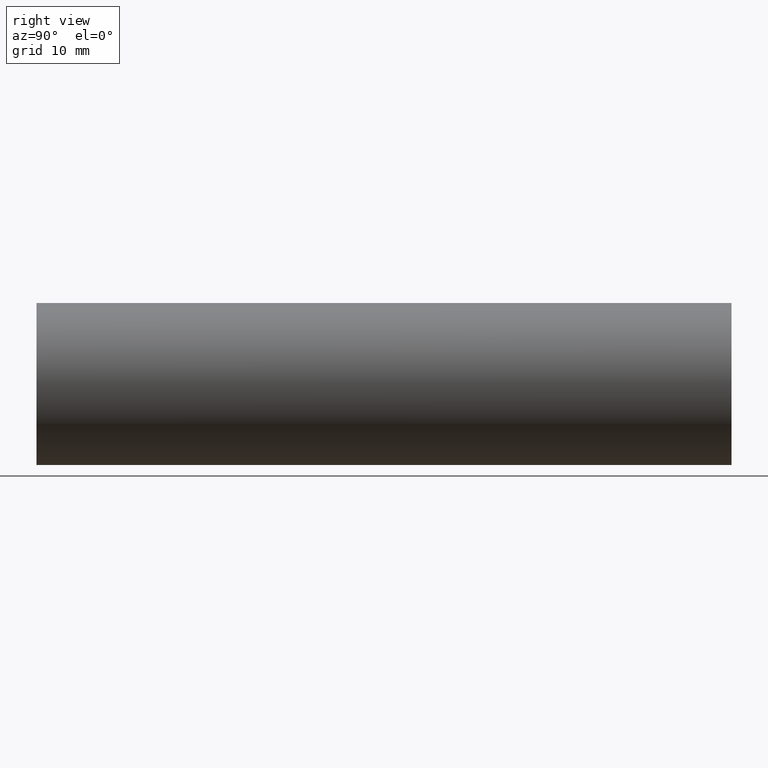
[diagram: clean part render]
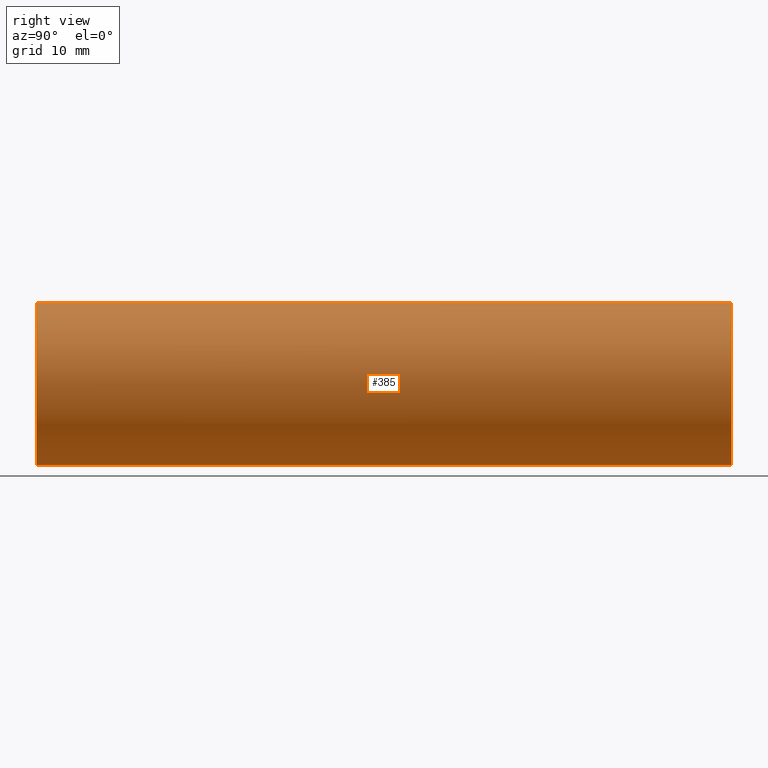
[diagram: same view with one face highlighted and labeled with its STEP entity id]
A machine part, right view. The second image highlights one B-rep face of the part: STEP entity #385.
In plain terms, the highlighted cylindrical surface (partial cylindrical patch) has radius 9.525 mm, axis along (-0, 1, -0).
Its self-contained STEP definition (entity closure, byte-faithful):
#4 = VERTEX_POINT ( 'NONE', #10 ) ;
#8 = CARTESIAN_POINT ( 'NONE',  ( 1.166476076187856400E-015, 161.3761669434274500, -9.525000000000019900 ) ) ;
#10 = CARTESIAN_POINT ( 'NONE',  ( 0.0000000000000000000, -2.775557561562891400E-014, 9.525000000000019900 ) ) ;
#41 = ORIENTED_EDGE ( 'NONE', *, *, #383, .F. ) ;
#71 = CARTESIAN_POINT ( 'NONE',  ( 1.166476076187856400E-015, 81.69999999999998900, -9.525000000000019900 ) ) ;
#94 = DIRECTION ( 'NONE',  ( 0.0000000000000000000, 0.0000000000000000000, 1.000000000000000000 ) ) ;
#134 = DIRECTION ( 'NONE',  ( -0.0000000000000000000, 1.000000000000000000, -0.0000000000000000000 ) ) ;
#139 = DIRECTION ( 'NONE',  ( -0.0000000000000000000, 1.000000000000000000, -0.0000000000000000000 ) ) ;
#141 = EDGE_CURVE ( 'NONE', #381, #239, #379, .T. ) ;
#184 = AXIS2_PLACEMENT_3D ( 'NONE', #567, #274, #473 ) ;
#204 = ORIENTED_EDGE ( 'NONE', *, *, #427, .F. ) ;
#225 = CARTESIAN_POINT ( 'NONE',  ( 1.166476076187856400E-015, -2.775557561562891400E-014, -9.525000000000019900 ) ) ;
#226 = VECTOR ( 'NONE', #134, 1000.000000000000000 ) ;
#239 = VERTEX_POINT ( 'NONE', #71 ) ;
#240 = LINE ( 'NONE', #268, #226 ) ;
#245 = EDGE_LOOP ( 'NONE', ( #452, #523, #204, #41 ) ) ;
#248 = DIRECTION ( 'NONE',  ( -0.0000000000000000000, 1.000000000000000000, -0.0000000000000000000 ) ) ;
#263 = CARTESIAN_POINT ( 'NONE',  ( 0.0000000000000000000, 81.69999999999998900, 9.525000000000019900 ) ) ;
#268 = CARTESIAN_POINT ( 'NONE',  ( 0.0000000000000000000, 161.3761669434274500, 9.525000000000019900 ) ) ;
#274 = DIRECTION ( 'NONE',  ( -0.0000000000000000000, 1.000000000000000000, -0.0000000000000000000 ) ) ;
#285 = AXIS2_PLACEMENT_3D ( 'NONE', #472, #139, #319 ) ;
#319 = DIRECTION ( 'NONE',  ( 0.0000000000000000000, 0.0000000000000000000, 1.000000000000000000 ) ) ;
#344 = CIRCLE ( 'NONE', #285, 9.525000000000019900 ) ;
#346 = VERTEX_POINT ( 'NONE', #263 ) ;
#362 = VECTOR ( 'NONE', #248, 1000.000000000000000 ) ;
#379 = LINE ( 'NONE', #8, #362 ) ;
#381 = VERTEX_POINT ( 'NONE', #225 ) ;
#383 = EDGE_CURVE ( 'NONE', #4, #346, #240, .T. ) ;
#385 = ADVANCED_FACE ( 'NONE', ( #399 ), #505, .T. ) ;
#399 = FACE_OUTER_BOUND ( 'NONE', #245, .T. ) ;
#427 = EDGE_CURVE ( 'NONE', #346, #239, #344, .T. ) ;
#452 = ORIENTED_EDGE ( 'NONE', *, *, #456, .T. ) ;
#456 = EDGE_CURVE ( 'NONE', #4, #381, #564, .T. ) ;
#465 = DIRECTION ( 'NONE',  ( -0.0000000000000000000, 1.000000000000000000, -0.0000000000000000000 ) ) ;
#470 = CARTESIAN_POINT ( 'NONE',  ( 0.0000000000000000000, -2.775557561562891400E-014, 0.0000000000000000000 ) ) ;
#472 = CARTESIAN_POINT ( 'NONE',  ( 0.0000000000000000000, 81.69999999999998900, 0.0000000000000000000 ) ) ;
#473 = DIRECTION ( 'NONE',  ( 0.0000000000000000000, 0.0000000000000000000, 1.000000000000000000 ) ) ;
#505 = CYLINDRICAL_SURFACE ( 'NONE', #184, 9.525000000000019900 ) ;
#523 = ORIENTED_EDGE ( 'NONE', *, *, #141, .T. ) ;
#564 = CIRCLE ( 'NONE', #600, 9.525000000000019900 ) ;
#567 = CARTESIAN_POINT ( 'NONE',  ( 0.0000000000000000000, 161.3761669434274500, 0.0000000000000000000 ) ) ;
#600 = AXIS2_PLACEMENT_3D ( 'NONE', #470, #465, #94 ) ;